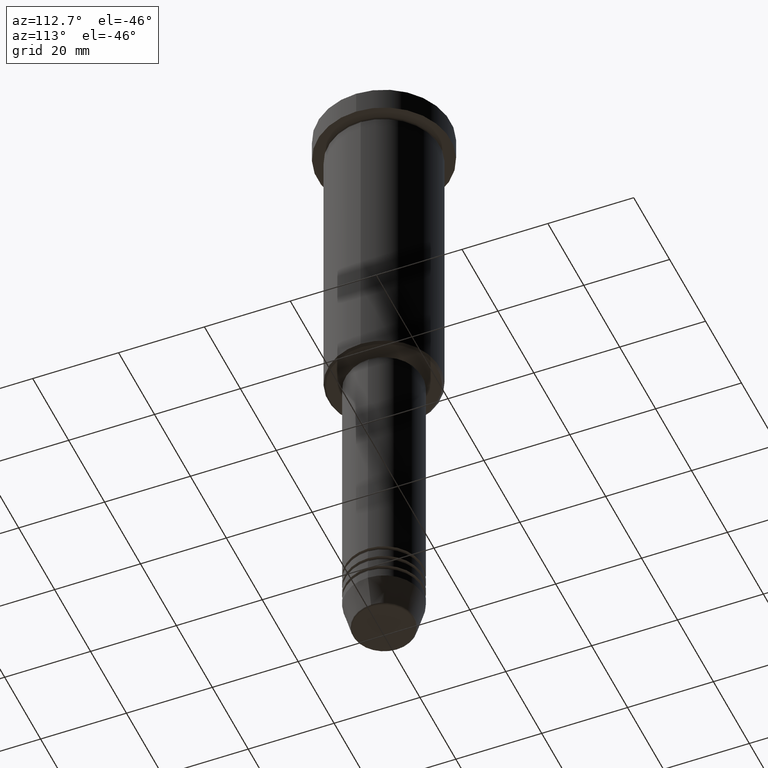
[diagram: clean part render]
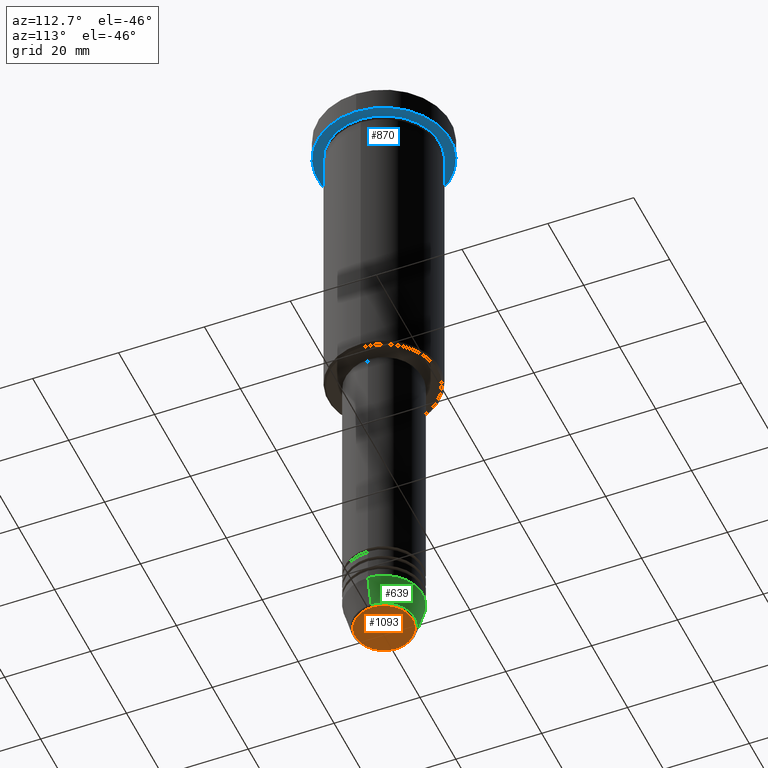
[diagram: same view with three faces highlighted in distinct colors, each labeled with its STEP entity id]
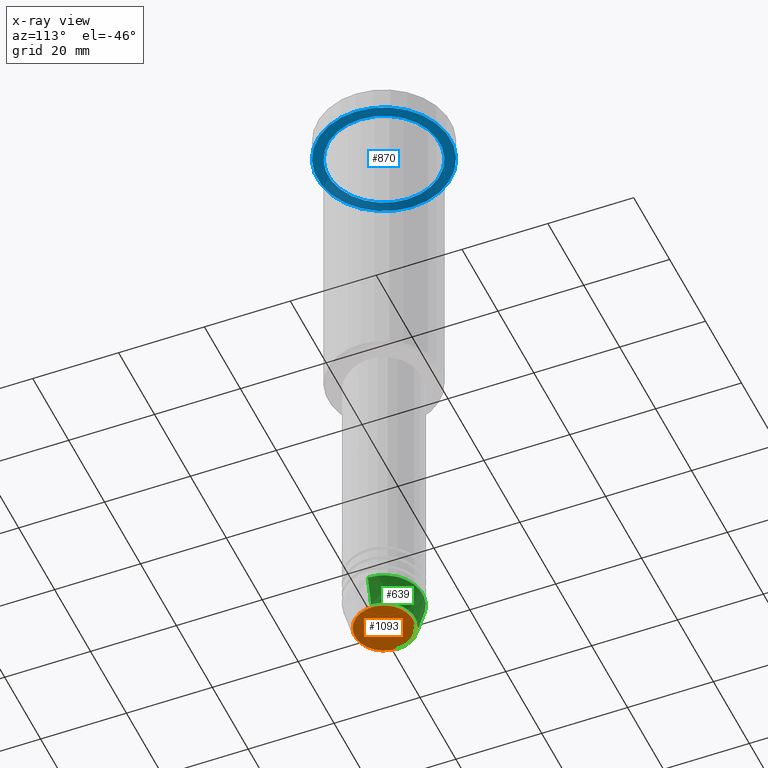
[diagram: x-ray of the same camera — body ghosted, the three highlighted faces saturated]
A machine part, auxiliary view with three faces highlighted in distinct colors.
The next image is the same camera in x-ray (body ghosted, the three faces saturated) — at least one of them is partly hidden behind the body in this view.
Their STEP definitions:

[orange] entity #1093 — the highlighted planar face has unit normal (0, -0, 1).
#23 = CARTESIAN_POINT ( 'NONE',  ( 0.000000000000000000, 0.000000000000000000, -150.9999999999999716 ) ) ;
#70 = EDGE_CURVE ( 'NONE', #1065, #841, #697, .T. ) ;
#135 = DIRECTION ( 'NONE',  ( 0.000000000000000000, 0.000000000000000000, -1.000000000000000000 ) ) ;
#168 = DIRECTION ( 'NONE',  ( 0.000000000000000000, 0.000000000000000000, -1.000000000000000000 ) ) ;
#317 = CARTESIAN_POINT ( 'NONE',  ( 6.740692158992664496, 0.000000000000000000, -150.9999999999999716 ) ) ;
#337 = FACE_OUTER_BOUND ( 'NONE', #384, .T. ) ;
#384 = EDGE_LOOP ( 'NONE', ( #1091, #475 ) ) ;
#475 = ORIENTED_EDGE ( 'NONE', *, *, #70, .T. ) ;
#642 = CIRCLE ( 'NONE', #775, 6.740692158992664496 ) ;
#681 = AXIS2_PLACEMENT_3D ( 'NONE', #1139, #949, #862 ) ;
#697 = CIRCLE ( 'NONE', #980, 6.740692158992664496 ) ;
#767 = DIRECTION ( 'NONE',  ( 1.000000000000000000, 0.000000000000000000, 0.000000000000000000 ) ) ;
#775 = AXIS2_PLACEMENT_3D ( 'NONE', #23, #168, #776 ) ;
#776 = DIRECTION ( 'NONE',  ( 1.000000000000000000, 0.000000000000000000, 0.000000000000000000 ) ) ;
#841 = VERTEX_POINT ( 'NONE', #317 ) ;
#862 = DIRECTION ( 'NONE',  ( 1.000000000000000000, 0.000000000000000000, 0.000000000000000000 ) ) ;
#940 = CARTESIAN_POINT ( 'NONE',  ( 0.000000000000000000, 0.000000000000000000, -150.9999999999999716 ) ) ;
#949 = DIRECTION ( 'NONE',  ( 0.000000000000000000, -0.000000000000000000, 1.000000000000000000 ) ) ;
#980 = AXIS2_PLACEMENT_3D ( 'NONE', #940, #135, #767 ) ;
#991 = EDGE_CURVE ( 'NONE', #841, #1065, #642, .T. ) ;
#1053 = PLANE ( 'NONE',  #681 ) ;
#1065 = VERTEX_POINT ( 'NONE', #1068 ) ;
#1068 = CARTESIAN_POINT ( 'NONE',  ( -6.740692158992664496, 8.550696569392693570E-16, -150.9999999999999716 ) ) ;
#1091 = ORIENTED_EDGE ( 'NONE', *, *, #991, .T. ) ;
#1093 = ADVANCED_FACE ( 'NONE', ( #337 ), #1053, .F. ) ;
#1139 = CARTESIAN_POINT ( 'NONE',  ( 0.000000000000000000, 0.000000000000000000, -150.9999999999999716 ) ) ;

[blue] entity #870 — the highlighted planar face has unit normal (0, 0, -1).
#33 = DIRECTION ( 'NONE',  ( 0.000000000000000000, 0.000000000000000000, -1.000000000000000000 ) ) ;
#34 = ORIENTED_EDGE ( 'NONE', *, *, #260, .T. ) ;
#80 = CARTESIAN_POINT ( 'NONE',  ( 0.000000000000000000, 0.000000000000000000, -5.999999999999995559 ) ) ;
#94 = DIRECTION ( 'NONE',  ( -0.000000000000000000, -0.000000000000000000, 1.000000000000000000 ) ) ;
#98 = EDGE_CURVE ( 'NONE', #264, #556, #348, .T. ) ;
#141 = CARTESIAN_POINT ( 'NONE',  ( 0.000000000000000000, 0.000000000000000000, -5.999999999999995559 ) ) ;
#153 = AXIS2_PLACEMENT_3D ( 'NONE', #1030, #33, #226 ) ;
#173 = AXIS2_PLACEMENT_3D ( 'NONE', #504, #520, #877 ) ;
#193 = VERTEX_POINT ( 'NONE', #951 ) ;
#226 = DIRECTION ( 'NONE',  ( -1.000000000000000000, 0.000000000000000000, -0.000000000000000000 ) ) ;
#260 = EDGE_CURVE ( 'NONE', #861, #193, #314, .T. ) ;
#264 = VERTEX_POINT ( 'NONE', #948 ) ;
#265 = DIRECTION ( 'NONE',  ( 1.000000000000000000, 0.000000000000000000, 0.000000000000000000 ) ) ;
#314 = CIRCLE ( 'NONE', #547, 13.00000000000000000 ) ;
#348 = CIRCLE ( 'NONE', #666, 15.50000000000000000 ) ;
#432 = DIRECTION ( 'NONE',  ( -0.000000000000000000, -0.000000000000000000, 1.000000000000000000 ) ) ;
#504 = CARTESIAN_POINT ( 'NONE',  ( 0.000000000000000000, 0.000000000000000000, -5.999999999999995559 ) ) ;
#508 = EDGE_LOOP ( 'NONE', ( #648, #34 ) ) ;
#520 = DIRECTION ( 'NONE',  ( -0.000000000000000000, -0.000000000000000000, 1.000000000000000000 ) ) ;
#547 = AXIS2_PLACEMENT_3D ( 'NONE', #768, #772, #1041 ) ;
#556 = VERTEX_POINT ( 'NONE', #1167 ) ;
#618 = CIRCLE ( 'NONE', #173, 13.00000000000000000 ) ;
#648 = ORIENTED_EDGE ( 'NONE', *, *, #1109, .T. ) ;
#666 = AXIS2_PLACEMENT_3D ( 'NONE', #141, #432, #265 ) ;
#694 = ORIENTED_EDGE ( 'NONE', *, *, #1178, .F. ) ;
#762 = FACE_OUTER_BOUND ( 'NONE', #1154, .T. ) ;
#768 = CARTESIAN_POINT ( 'NONE',  ( 0.000000000000000000, 0.000000000000000000, -5.999999999999995559 ) ) ;
#771 = CARTESIAN_POINT ( 'NONE',  ( 13.00000000000000000, 1.592040838891559095E-15, -5.999999999999994671 ) ) ;
#772 = DIRECTION ( 'NONE',  ( -0.000000000000000000, -0.000000000000000000, 1.000000000000000000 ) ) ;
#791 = CIRCLE ( 'NONE', #959, 15.50000000000000000 ) ;
#861 = VERTEX_POINT ( 'NONE', #771 ) ;
#870 = ADVANCED_FACE ( 'NONE', ( #1127, #762 ), #1017, .T. ) ;
#877 = DIRECTION ( 'NONE',  ( -1.000000000000000000, 0.000000000000000000, 0.000000000000000000 ) ) ;
#948 = CARTESIAN_POINT ( 'NONE',  ( 15.50000000000000000, 0.000000000000000000, -5.999999999999995559 ) ) ;
#951 = CARTESIAN_POINT ( 'NONE',  ( -13.00000000000000000, 0.000000000000000000, -5.999999999999994671 ) ) ;
#959 = AXIS2_PLACEMENT_3D ( 'NONE', #80, #94, #1180 ) ;
#1017 = PLANE ( 'NONE',  #153 ) ;
#1030 = CARTESIAN_POINT ( 'NONE',  ( 0.000000000000000000, 15.50000000000000000, -5.999999999999995559 ) ) ;
#1041 = DIRECTION ( 'NONE',  ( -1.000000000000000000, 0.000000000000000000, 0.000000000000000000 ) ) ;
#1048 = ORIENTED_EDGE ( 'NONE', *, *, #98, .F. ) ;
#1109 = EDGE_CURVE ( 'NONE', #193, #861, #618, .T. ) ;
#1127 = FACE_BOUND ( 'NONE', #508, .T. ) ;
#1154 = EDGE_LOOP ( 'NONE', ( #1048, #694 ) ) ;
#1167 = CARTESIAN_POINT ( 'NONE',  ( -15.50000000000000000, 1.898202538678397557E-15, -5.999999999999995559 ) ) ;
#1178 = EDGE_CURVE ( 'NONE', #556, #264, #791, .T. ) ;
#1180 = DIRECTION ( 'NONE',  ( 1.000000000000000000, 0.000000000000000000, 0.000000000000000000 ) ) ;

[green] entity #639 — the highlighted conical surface has half-angle 15 deg.
#60 = DIRECTION ( 'NONE',  ( -0.000000000000000000, -0.000000000000000000, 1.000000000000000000 ) ) ;
#73 = CARTESIAN_POINT ( 'NONE',  ( 0.000000000000000000, 0.000000000000000000, -150.6294095225512422 ) ) ;
#89 = DIRECTION ( 'NONE',  ( 1.000000000000000000, 0.000000000000000000, 0.000000000000000000 ) ) ;
#136 = CIRCLE ( 'NONE', #739, 7.223655072137196598 ) ;
#143 = VERTEX_POINT ( 'NONE', #625 ) ;
#224 = EDGE_CURVE ( 'NONE', #143, #351, #136, .T. ) ;
#249 = CARTESIAN_POINT ( 'NONE',  ( 9.000000000000000000, 0.000000000000000000, -144.0000000000000000 ) ) ;
#253 = CARTESIAN_POINT ( 'NONE',  ( 0.000000000000000000, 0.000000000000000000, -144.0000000000000000 ) ) ;
#311 = CONICAL_SURFACE ( 'NONE', #600, 9.000000000000000000, 0.2617993877991500740 ) ;
#351 = VERTEX_POINT ( 'NONE', #662 ) ;
#364 = VERTEX_POINT ( 'NONE', #711 ) ;
#377 = ORIENTED_EDGE ( 'NONE', *, *, #577, .F. ) ;
#400 = AXIS2_PLACEMENT_3D ( 'NONE', #1153, #60, #976 ) ;
#458 = CIRCLE ( 'NONE', #400, 9.000000000000000000 ) ;
#469 = EDGE_CURVE ( 'NONE', #351, #364, #678, .T. ) ;
#517 = DIRECTION ( 'NONE',  ( 1.000000000000000000, 0.000000000000000000, 0.000000000000000000 ) ) ;
#528 = VERTEX_POINT ( 'NONE', #249 ) ;
#577 = EDGE_CURVE ( 'NONE', #528, #364, #458, .T. ) ;
#600 = AXIS2_PLACEMENT_3D ( 'NONE', #253, #966, #517 ) ;
#625 = CARTESIAN_POINT ( 'NONE',  ( 7.223655072137196598, 0.000000000000000000, -150.6294095225512422 ) ) ;
#639 = ADVANCED_FACE ( 'NONE', ( #1146 ), #311, .T. ) ;
#646 = ORIENTED_EDGE ( 'NONE', *, *, #469, .T. ) ;
#662 = CARTESIAN_POINT ( 'NONE',  ( -7.223655072137197486, 9.934123627281769054E-16, -150.6294095225512422 ) ) ;
#669 = VECTOR ( 'NONE', #1138, 1000.000000000000000 ) ;
#678 = LINE ( 'NONE', #1035, #669 ) ;
#711 = CARTESIAN_POINT ( 'NONE',  ( -9.000000000000000000, 1.102182119232617714E-15, -144.0000000000000000 ) ) ;
#739 = AXIS2_PLACEMENT_3D ( 'NONE', #73, #741, #89 ) ;
#741 = DIRECTION ( 'NONE',  ( -0.000000000000000000, -0.000000000000000000, 1.000000000000000000 ) ) ;
#755 = DIRECTION ( 'NONE',  ( 0.2588190451025213501, 0.000000000000000000, 0.9659258262890680902 ) ) ;
#766 = CARTESIAN_POINT ( 'NONE',  ( 9.000000000000000000, 0.000000000000000000, -144.0000000000000000 ) ) ;
#839 = LINE ( 'NONE', #766, #1066 ) ;
#931 = EDGE_CURVE ( 'NONE', #143, #528, #839, .T. ) ;
#957 = EDGE_LOOP ( 'NONE', ( #1150, #646, #377, #1140 ) ) ;
#966 = DIRECTION ( 'NONE',  ( -0.000000000000000000, -0.000000000000000000, 1.000000000000000000 ) ) ;
#976 = DIRECTION ( 'NONE',  ( 1.000000000000000000, 0.000000000000000000, 0.000000000000000000 ) ) ;
#1035 = CARTESIAN_POINT ( 'NONE',  ( -9.000000000000000000, 1.102182119232617714E-15, -144.0000000000000000 ) ) ;
#1066 = VECTOR ( 'NONE', #755, 1000.000000000000000 ) ;
#1138 = DIRECTION ( 'NONE',  ( -0.2588190451025213501, 3.169619151431772337E-17, 0.9659258262890680902 ) ) ;
#1140 = ORIENTED_EDGE ( 'NONE', *, *, #931, .F. ) ;
#1146 = FACE_OUTER_BOUND ( 'NONE', #957, .T. ) ;
#1150 = ORIENTED_EDGE ( 'NONE', *, *, #224, .T. ) ;
#1153 = CARTESIAN_POINT ( 'NONE',  ( 0.000000000000000000, 0.000000000000000000, -144.0000000000000000 ) ) ;